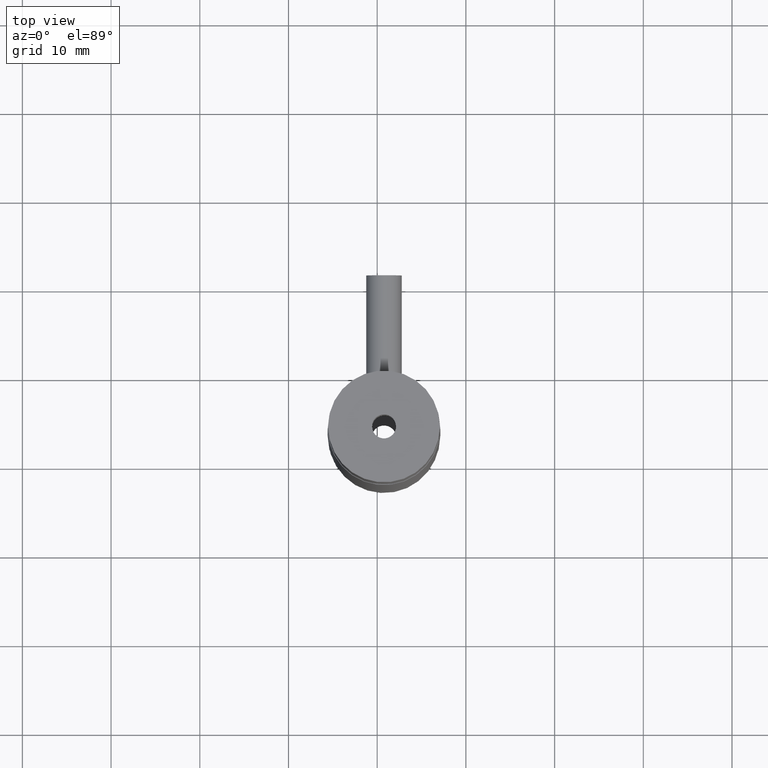
[diagram: clean part render]
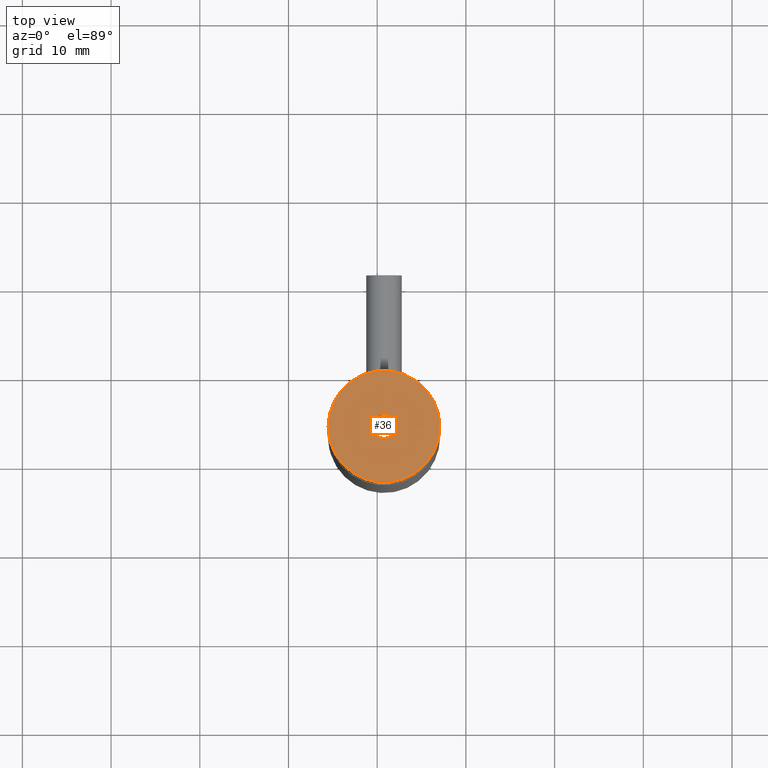
[diagram: same view with one face highlighted and labeled with its STEP entity id]
A machine part, top view. The second image highlights one B-rep face of the part: STEP entity #36.
In plain terms, the highlighted planar face has unit normal (-0, -0, 1).
Its self-contained STEP definition (entity closure, byte-faithful):
#1 = VERTEX_POINT ( 'NONE', #457 ) ;
#27 = EDGE_CURVE ( 'NONE', #62, #117, #566, .T. ) ;
#28 = ORIENTED_EDGE ( 'NONE', *, *, #116, .T. ) ;
#31 = ORIENTED_EDGE ( 'NONE', *, *, #27, .T. ) ;
#35 = EDGE_CURVE ( 'NONE', #85, #1, #589, .T. ) ;
#36 = ADVANCED_FACE ( 'NONE', ( #584, #583 ), #625, .T. ) ;
#37 = EDGE_LOOP ( 'NONE', ( #38, #39 ) ) ;
#38 = ORIENTED_EDGE ( 'NONE', *, *, #35, .F. ) ;
#39 = ORIENTED_EDGE ( 'NONE', *, *, #84, .F. ) ;
#40 = EDGE_LOOP ( 'NONE', ( #28, #31 ) ) ;
#62 = VERTEX_POINT ( 'NONE', #702 ) ;
#84 = EDGE_CURVE ( 'NONE', #1, #85, #822, .T. ) ;
#85 = VERTEX_POINT ( 'NONE', #817 ) ;
#116 = EDGE_CURVE ( 'NONE', #117, #62, #934, .T. ) ;
#117 = VERTEX_POINT ( 'NONE', #929 ) ;
#457 = CARTESIAN_POINT ( 'NONE',  ( -0.02306504494170224000, -0.2577627768316083600, -0.2700585705362995000 ) ) ;
#562 = DIRECTION ( 'NONE',  ( 1.000000000000000000, 0.0000000000000000000, 0.0000000000000000000 ) ) ;
#563 = DIRECTION ( 'NONE',  ( 0.0000000000000000000, -4.930380657631323800E-032, 1.000000000000000000 ) ) ;
#564 = CARTESIAN_POINT ( 'NONE',  ( 0.03018495505829773400, -0.2577627768316083600, -0.2700585705362995000 ) ) ;
#565 = AXIS2_PLACEMENT_3D ( 'NONE', #564, #563, #562 ) ;
#566 = CIRCLE ( 'NONE', #565, 0.2480314960629921600 ) ;
#583 = FACE_OUTER_BOUND ( 'NONE', #40, .T. ) ;
#584 = FACE_BOUND ( 'NONE', #37, .T. ) ;
#585 = DIRECTION ( 'NONE',  ( 1.000000000000000000, 0.0000000000000000000, 0.0000000000000000000 ) ) ;
#586 = DIRECTION ( 'NONE',  ( 0.0000000000000000000, -4.930380657631323800E-032, 1.000000000000000000 ) ) ;
#587 = CARTESIAN_POINT ( 'NONE',  ( 0.03018495505829773400, -0.2577627768316083600, -0.2700585705362995000 ) ) ;
#588 = AXIS2_PLACEMENT_3D ( 'NONE', #587, #586, #585 ) ;
#589 = CIRCLE ( 'NONE', #588, 0.05324999999999997100 ) ;
#621 = DIRECTION ( 'NONE',  ( 1.000000000000000000, -9.045950685202959200E-032, 0.0000000000000000000 ) ) ;
#622 = DIRECTION ( 'NONE',  ( -4.459998028821149000E-063, -4.930380657631323800E-032, 1.000000000000000000 ) ) ;
#623 = CARTESIAN_POINT ( 'NONE',  ( 0.03018495505829773400, -0.2577627768316083600, -0.2700585705362995000 ) ) ;
#624 = AXIS2_PLACEMENT_3D ( 'NONE', #623, #622, #621 ) ;
#625 = PLANE ( 'NONE',  #624 ) ;
#702 = CARTESIAN_POINT ( 'NONE',  ( -0.2178465410046944400, -0.2577627768316083100, -0.2700585705362995000 ) ) ;
#817 = CARTESIAN_POINT ( 'NONE',  ( 0.08343495505829770500, -0.2577627768316083600, -0.2700585705362995000 ) ) ;
#818 = DIRECTION ( 'NONE',  ( 1.000000000000000000, 0.0000000000000000000, 0.0000000000000000000 ) ) ;
#819 = DIRECTION ( 'NONE',  ( 0.0000000000000000000, -4.930380657631323800E-032, 1.000000000000000000 ) ) ;
#820 = CARTESIAN_POINT ( 'NONE',  ( 0.03018495505829773400, -0.2577627768316083600, -0.2700585705362995000 ) ) ;
#821 = AXIS2_PLACEMENT_3D ( 'NONE', #820, #819, #818 ) ;
#822 = CIRCLE ( 'NONE', #821, 0.05324999999999997100 ) ;
#929 = CARTESIAN_POINT ( 'NONE',  ( 0.2782164511212899000, -0.2577627768316083600, -0.2700585705362995000 ) ) ;
#930 = DIRECTION ( 'NONE',  ( 1.000000000000000000, 0.0000000000000000000, 0.0000000000000000000 ) ) ;
#931 = DIRECTION ( 'NONE',  ( 0.0000000000000000000, -4.930380657631323800E-032, 1.000000000000000000 ) ) ;
#932 = CARTESIAN_POINT ( 'NONE',  ( 0.03018495505829773400, -0.2577627768316083600, -0.2700585705362995000 ) ) ;
#933 = AXIS2_PLACEMENT_3D ( 'NONE', #932, #931, #930 ) ;
#934 = CIRCLE ( 'NONE', #933, 0.2480314960629921600 ) ;